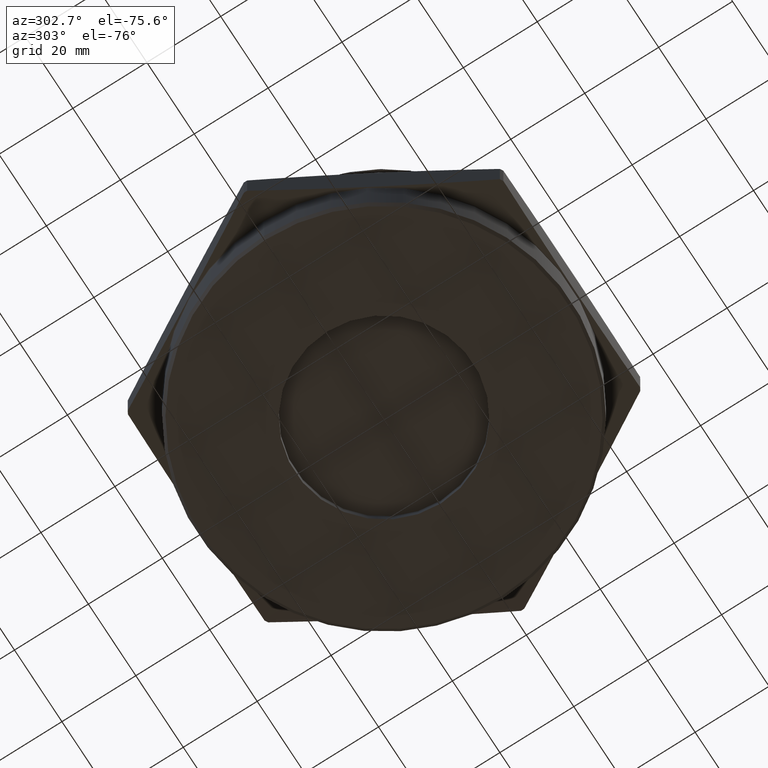
[diagram: clean part render]
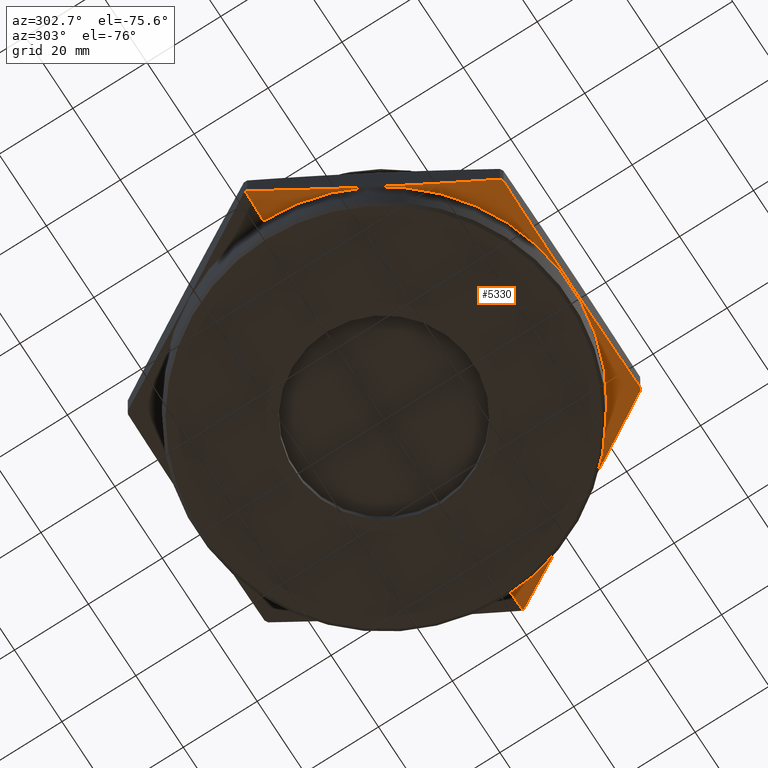
[diagram: same view with one face highlighted and labeled with its STEP entity id]
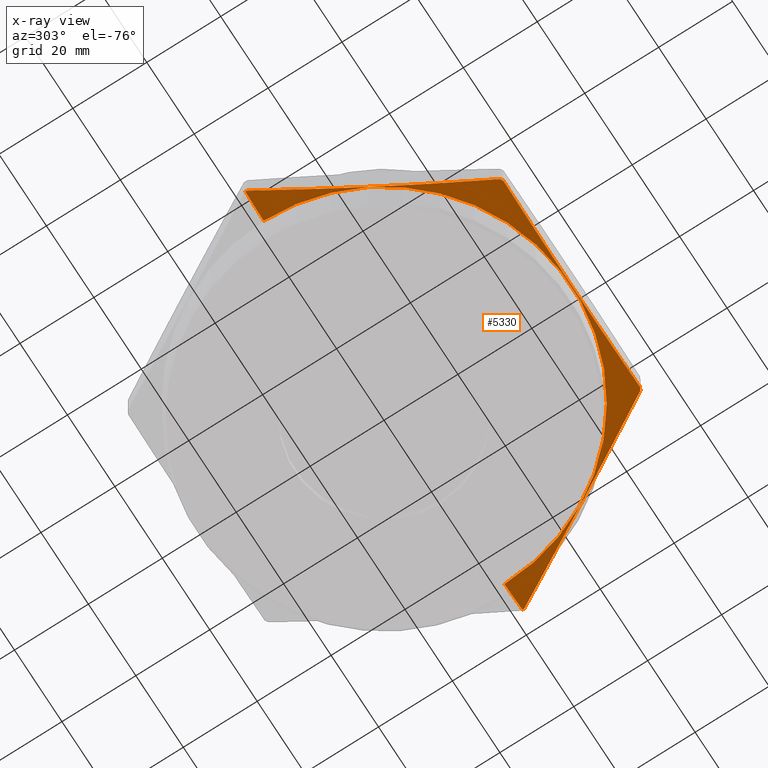
[diagram: x-ray of the same camera — body ghosted, the highlighted face saturated]
A machine part, auxiliary view. The second image highlights one B-rep face of the part: STEP entity #5330.
The next image is the same camera in x-ray: the body ghosted, the highlighted face saturated — about 0% of this face is hidden behind the body in this view.
In plain terms, the highlighted conical surface has half-angle 78 deg.
Its self-contained STEP definition (entity closure, byte-faithful):
#131 = VECTOR ( 'NONE', #6093, 39.37007874015748900 ) ;
#134 = LINE ( 'NONE', #6094, #131 ) ;
#329 = CARTESIAN_POINT ( 'NONE',  ( 1.911132734817680000E-017, 0.0000000000000000000, 0.001683635675388010700 ) ) ;
#330 = DIRECTION ( 'NONE',  ( 1.254986547952384500E-016, 0.0000000000000000000, 1.000000000000000000 ) ) ;
#331 = DIRECTION ( 'NONE',  ( 1.000000000000000000, 0.0000000000000000000, -1.255180377339665800E-016 ) ) ;
#337 = DIRECTION ( 'NONE',  ( -0.9781476007338069100, 1.197885328332319900E-016, 0.2079116908177528500 ) ) ;
#342 = CARTESIAN_POINT ( 'NONE',  ( -2.299401076758503600, 2.815954168608278800E-016, 0.06576522905278790700 ) ) ;
#448 = CARTESIAN_POINT ( 'NONE',  ( 8.253447778425580200E-018, 0.0000000000000000000, 0.06576522905278761600 ) ) ;
#449 = DIRECTION ( 'NONE',  ( -1.254986547952384500E-016, -0.0000000000000000000, -1.000000000000000000 ) ) ;
#450 = DIRECTION ( 'NONE',  ( -1.000000000000000000, 0.0000000000000000000, 1.262323707945765500E-016 ) ) ;
#552 = CARTESIAN_POINT ( 'NONE',  ( 2.299401076758503600, 0.0000000000000000000, 0.06576522905278733800 ) ) ;
#594 = DIRECTION ( 'NONE',  ( 1.000000000000000000, 0.0000000000000000000, -1.262323707945765500E-016 ) ) ;
#595 = CARTESIAN_POINT ( 'NONE',  ( 8.253447778425580200E-018, 0.0000000000000000000, 0.06576522905278761600 ) ) ;
#596 = DIRECTION ( 'NONE',  ( 1.254986547952384500E-016, 0.0000000000000000000, 1.000000000000000000 ) ) ;
#821 = AXIS2_PLACEMENT_3D ( 'NONE', #4716, #4717, #4718 ) ;
#823 = AXIS2_PLACEMENT_3D ( 'NONE', #4728, #4729, #4730 ) ;
#826 = AXIS2_PLACEMENT_3D ( 'NONE', #4747, #4748, #4749 ) ;
#903 = ORIENTED_EDGE ( 'NONE', *, *, #1855, .F. ) ;
#904 = ORIENTED_EDGE ( 'NONE', *, *, #1849, .T. ) ;
#1737 = EDGE_LOOP ( 'NONE', ( #903, #904, #8221, #8222, #8223, #8224, #8225, #8226, #8227, #8228 ) ) ;
#1799 = EDGE_CURVE ( 'NONE', #8197, #8205, #3121, .T. ) ;
#1804 = EDGE_CURVE ( 'NONE', #8202, #8206, #3129, .T. ) ;
#1811 = EDGE_CURVE ( 'NONE', #3173, #8210, #7310, .T. ) ;
#1849 = EDGE_CURVE ( 'NONE', #7247, #7257, #7355, .T. ) ;
#1855 = EDGE_CURVE ( 'NONE', #7247, #7277, #7358, .T. ) ;
#1882 = EDGE_CURVE ( 'NONE', #7272, #7277, #7394, .T. ) ;
#2925 = AXIS2_PLACEMENT_3D ( 'NONE', #329, #330, #331 ) ;
#2940 = AXIS2_PLACEMENT_3D ( 'NONE', #448, #449, #450 ) ;
#2951 = AXIS2_PLACEMENT_3D ( 'NONE', #595, #596, #594 ) ;
#3121 = CIRCLE ( 'NONE', #821, 2.299401076758503600 ) ;
#3129 = CIRCLE ( 'NONE', #823, 2.299401076758503600 ) ;
#3173 = VERTEX_POINT ( 'NONE', #552 ) ;
#4716 = CARTESIAN_POINT ( 'NONE',  ( 8.253447778425580200E-018, 0.0000000000000000000, 0.06576522905278761600 ) ) ;
#4717 = DIRECTION ( 'NONE',  ( -1.254986547952384500E-016, -0.0000000000000000000, -1.000000000000000000 ) ) ;
#4718 = DIRECTION ( 'NONE',  ( -1.000000000000000000, 0.0000000000000000000, 1.262323707945765500E-016 ) ) ;
#4728 = CARTESIAN_POINT ( 'NONE',  ( 8.253447778425580200E-018, 0.0000000000000000000, 0.06576522905278761600 ) ) ;
#4729 = DIRECTION ( 'NONE',  ( -1.254986547952384500E-016, -0.0000000000000000000, -1.000000000000000000 ) ) ;
#4730 = DIRECTION ( 'NONE',  ( -1.000000000000000000, 0.0000000000000000000, 1.262323707945765500E-016 ) ) ;
#4747 = CARTESIAN_POINT ( 'NONE',  ( 8.253447778425580200E-018, 0.0000000000000000000, 0.06576522905278761600 ) ) ;
#4748 = DIRECTION ( 'NONE',  ( -1.254986547952384500E-016, -0.0000000000000000000, -1.000000000000000000 ) ) ;
#4749 = DIRECTION ( 'NONE',  ( -1.000000000000000000, 0.0000000000000000000, 1.262323707945765500E-016 ) ) ;
#5330 = ADVANCED_FACE ( 'NONE', ( #7433 ), #7440, .T. ) ;
#6002 = CARTESIAN_POINT ( 'NONE',  ( -1.997920883091824300, 2.446747414428055700E-016, 0.001683635675388258300 ) ) ;
#6005 = CARTESIAN_POINT ( 'NONE',  ( 1.997920883091824300, 0.0000000000000000000, 0.001683635675387746100 ) ) ;
#6012 = CARTESIAN_POINT ( 'NONE',  ( -2.299334976173590800, -0.01743499764716512800, 0.06576522905278790700 ) ) ;
#6027 = CARTESIAN_POINT ( 'NONE',  ( -2.299401076758503600, 0.0000000000000000000, 0.06576522905278790700 ) ) ;
#6030 = CARTESIAN_POINT ( 'NONE',  ( 1.134568337209427700, -2.000000000000000000, 0.06576522905278747700 ) ) ;
#6044 = CARTESIAN_POINT ( 'NONE',  ( -1.134568337209427700, -2.000000000000000000, 0.06576522905278790700 ) ) ;
#6077 = CARTESIAN_POINT ( 'NONE',  ( 1.164766638964162000, -1.982565002352834500, 0.06576522905278790700 ) ) ;
#6079 = CARTESIAN_POINT ( 'NONE',  ( -1.164766638964162000, -1.982565002352835200, 0.06576522905278776900 ) ) ;
#6082 = CARTESIAN_POINT ( 'NONE',  ( 2.299334976173591300, -0.01743499764716485700, 0.06576522905278733800 ) ) ;
#6093 = DIRECTION ( 'NONE',  ( 0.9781476007338071300, 0.0000000000000000000, 0.2079116908177526300 ) ) ;
#6094 = CARTESIAN_POINT ( 'NONE',  ( 2.299401076758503600, 0.0000000000000000000, 0.06576522905278733800 ) ) ;
#6142 = CARTESIAN_POINT ( 'NONE',  ( 1.259314000398281900, -1.818804168627362200, 0.04593307650755602100 ) ) ;
#6143 = CARTESIAN_POINT ( 'NONE',  ( 1.164766638964162000, -1.982565002352834500, 0.06576522905278790700 ) ) ;
#6151 = CARTESIAN_POINT ( 'NONE',  ( -0.9456222795858726400, -2.000000000000000000, 0.04594866843823527900 ) ) ;
#6152 = CARTESIAN_POINT ( 'NONE',  ( -1.134568337209427700, -2.000000000000000000, 0.06576522905278790700 ) ) ;
#6153 = CARTESIAN_POINT ( 'NONE',  ( 1.353861361832401100, -1.655043334901889600, 0.02986342332082336100 ) ) ;
#6154 = CARTESIAN_POINT ( 'NONE',  ( 1.542956084700638500, -1.327521667450945100, 0.007927713976513794600 ) ) ;
#6155 = CARTESIAN_POINT ( 'NONE',  ( 1.732050807568877000, -1.000000000000000200, -0.003676582743114667300 ) ) ;
#6156 = CARTESIAN_POINT ( 'NONE',  ( 1.921145530437115400, -0.6724783325490552000, 0.007927713976513744300 ) ) ;
#6157 = CARTESIAN_POINT ( 'NONE',  ( 2.110240253305352800, -0.3449566650981101300, 0.02986342332082325300 ) ) ;
#6158 = CARTESIAN_POINT ( 'NONE',  ( 2.204787614739472300, -0.1811958313726375600, 0.04593307650755587600 ) ) ;
#6159 = CARTESIAN_POINT ( 'NONE',  ( 2.299334976173591300, -0.01743499764716485700, 0.06576522905278733800 ) ) ;
#6160 = CARTESIAN_POINT ( 'NONE',  ( -2.204787614739471800, -0.1811958313726377300, 0.04593307650755640300 ) ) ;
#6161 = CARTESIAN_POINT ( 'NONE',  ( -2.299334976173590800, -0.01743499764716512800, 0.06576522905278790700 ) ) ;
#6162 = CARTESIAN_POINT ( 'NONE',  ( -0.7559578640446083000, -2.000000000000000400, 0.02982638003161709700 ) ) ;
#6163 = CARTESIAN_POINT ( 'NONE',  ( -0.3771993329462167700, -1.999999999999999300, 0.007882955555628961800 ) ) ;
#6164 = CARTESIAN_POINT ( 'NONE',  ( -0.1879364653211596800, -2.000000000000000400, 0.002101596977767088500 ) ) ;
#6165 = CARTESIAN_POINT ( 'NONE',  ( 0.1903288881007076700, -1.999999999999999800, 0.002149686331516086300 ) ) ;
#6166 = CARTESIAN_POINT ( 'NONE',  ( 0.3793314151948289900, -2.000000000000000400, 0.007977292755614318100 ) ) ;
#6167 = CARTESIAN_POINT ( 'NONE',  ( 0.7571057118710260400, -2.000000000000000400, 0.02992232053064537700 ) ) ;
#6168 = CARTESIAN_POINT ( 'NONE',  ( 0.9458789202287698500, -2.000000000000000400, 0.04597558477044166900 ) ) ;
#6169 = CARTESIAN_POINT ( 'NONE',  ( 1.134568337209427700, -2.000000000000000000, 0.06576522905278747700 ) ) ;
#6170 = CARTESIAN_POINT ( 'NONE',  ( -2.110240253305353300, -0.3449566650981102400, 0.02986342332082367300 ) ) ;
#6171 = CARTESIAN_POINT ( 'NONE',  ( -1.921145530437114600, -0.6724783325490552000, 0.007927713976514113800 ) ) ;
#6172 = CARTESIAN_POINT ( 'NONE',  ( -1.732050807568876300, -1.000000000000000400, -0.003676582743114382400 ) ) ;
#6173 = CARTESIAN_POINT ( 'NONE',  ( -1.542956084700638100, -1.327521667450945100, 0.007927713976514115500 ) ) ;
#6174 = CARTESIAN_POINT ( 'NONE',  ( -1.353861361832400000, -1.655043334901890300, 0.02986342332082364200 ) ) ;
#6175 = CARTESIAN_POINT ( 'NONE',  ( -1.259314000398281000, -1.818804168627363000, 0.04593307650755627100 ) ) ;
#6176 = CARTESIAN_POINT ( 'NONE',  ( -1.164766638964162000, -1.982565002352835200, 0.06576522905278776900 ) ) ;
#7247 = VERTEX_POINT ( 'NONE', #6002 ) ;
#7257 = VERTEX_POINT ( 'NONE', #6005 ) ;
#7272 = VERTEX_POINT ( 'NONE', #6012 ) ;
#7277 = VERTEX_POINT ( 'NONE', #6027 ) ;
#7310 = CIRCLE ( 'NONE', #826, 2.299401076758503600 ) ;
#7355 = CIRCLE ( 'NONE', #2925, 1.997920883091822500 ) ;
#7358 = LINE ( 'NONE', #342, #7366 ) ;
#7366 = VECTOR ( 'NONE', #337, 39.37007874015748100 ) ;
#7394 = CIRCLE ( 'NONE', #2940, 2.299401076758503600 ) ;
#7433 = FACE_OUTER_BOUND ( 'NONE', #1737, .T. ) ;
#7440 = CONICAL_SURFACE ( 'NONE', #2951, 2.299401076758503600, 1.361356816555583800 ) ;
#7847 = B_SPLINE_CURVE_WITH_KNOTS ( 'NONE', 3,
 ( #6161, #6160, #6170, #6171, #6172, #6173, #6174, #6175, #6176 ),
 .UNSPECIFIED., .F., .F.,
 ( 4, 2, 1, 2, 4 ),
 ( 1.906903343481486000E-006, 0.01441092478590323000, 0.02881994266846298100, 0.04322896055102272400, 0.05763797843358247500 ),
 .UNSPECIFIED. ) ;
#7848 = B_SPLINE_CURVE_WITH_KNOTS ( 'NONE', 3,
 ( #6152, #6151, #6162, #6163, #6164, #6165, #6166, #6167, #6168, #6169 ),
 .UNSPECIFIED., .F., .F.,
 ( 4, 2, 2, 2, 4 ),
 ( 0.04919663627796086500, 0.06366317935810259000, 0.07812972243824430100, 0.09259626551838601200, 0.1070628085985277400 ),
 .UNSPECIFIED. ) ;
#7849 = B_SPLINE_CURVE_WITH_KNOTS ( 'NONE', 3,
 ( #6143, #6142, #6153, #6154, #6155, #6156, #6157, #6158, #6159 ),
 .UNSPECIFIED., .F., .F.,
 ( 4, 2, 1, 2, 4 ),
 ( 1.906903343507485200E-006, 0.01441092478590325600, 0.02881994266846300500, 0.04322896055102275200, 0.05763797843358250300 ),
 .UNSPECIFIED. ) ;
#8197 = VERTEX_POINT ( 'NONE', #6044 ) ;
#8202 = VERTEX_POINT ( 'NONE', #6077 ) ;
#8205 = VERTEX_POINT ( 'NONE', #6079 ) ;
#8206 = VERTEX_POINT ( 'NONE', #6030 ) ;
#8210 = VERTEX_POINT ( 'NONE', #6082 ) ;
#8221 = ORIENTED_EDGE ( 'NONE', *, *, #8253, .T. ) ;
#8222 = ORIENTED_EDGE ( 'NONE', *, *, #1811, .T. ) ;
#8223 = ORIENTED_EDGE ( 'NONE', *, *, #8266, .F. ) ;
#8224 = ORIENTED_EDGE ( 'NONE', *, *, #1804, .T. ) ;
#8225 = ORIENTED_EDGE ( 'NONE', *, *, #8267, .F. ) ;
#8226 = ORIENTED_EDGE ( 'NONE', *, *, #1799, .T. ) ;
#8227 = ORIENTED_EDGE ( 'NONE', *, *, #8268, .F. ) ;
#8228 = ORIENTED_EDGE ( 'NONE', *, *, #1882, .T. ) ;
#8253 = EDGE_CURVE ( 'NONE', #7257, #3173, #134, .T. ) ;
#8266 = EDGE_CURVE ( 'NONE', #8202, #8210, #7849, .T. ) ;
#8267 = EDGE_CURVE ( 'NONE', #8197, #8206, #7848, .T. ) ;
#8268 = EDGE_CURVE ( 'NONE', #7272, #8205, #7847, .T. ) ;